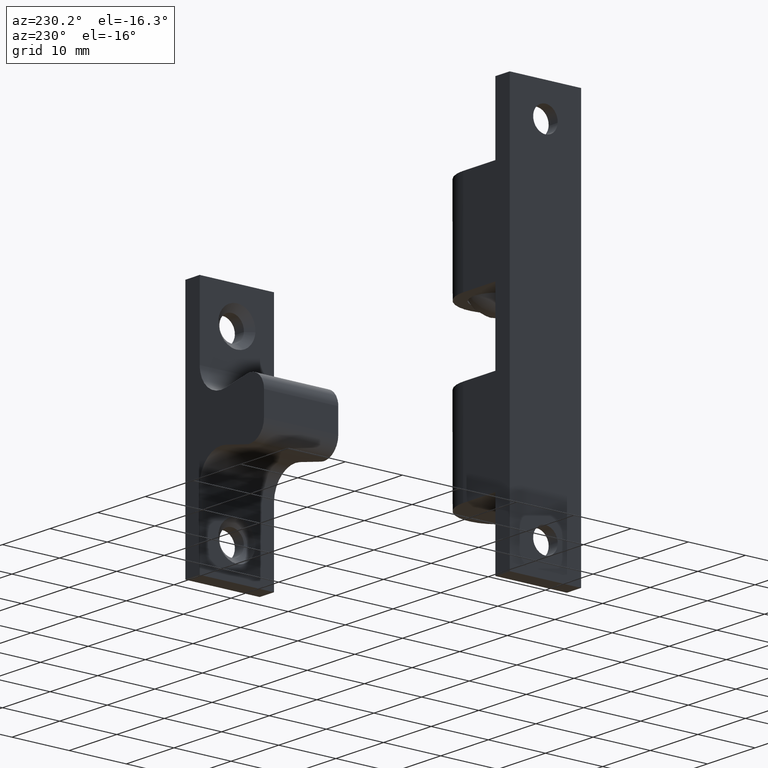
[diagram: clean part render]
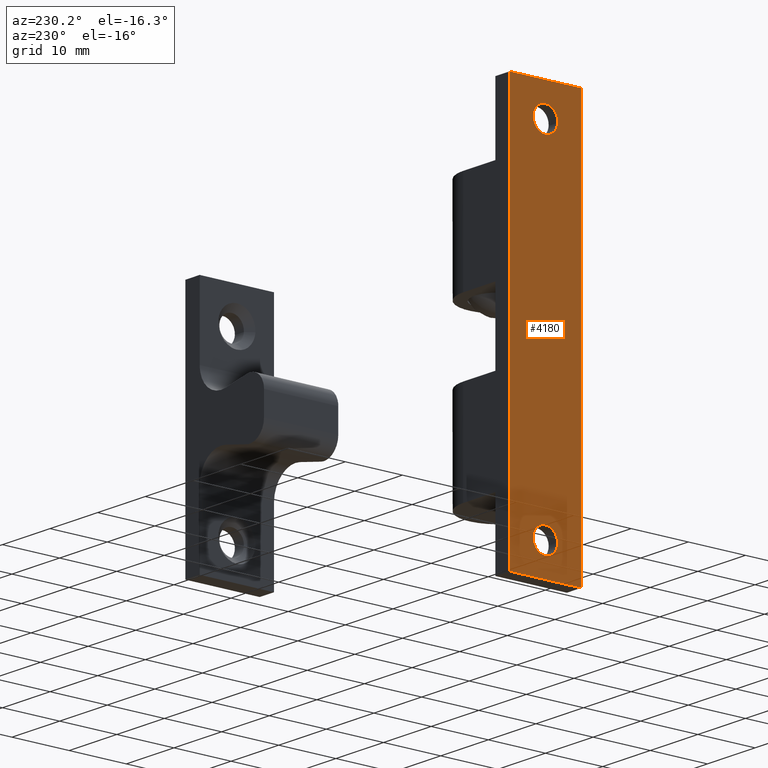
[diagram: same view with one face highlighted and labeled with its STEP entity id]
A machine part, auxiliary view. The second image highlights one B-rep face of the part: STEP entity #4180.
In plain terms, the highlighted face is a freeform B-spline surface patch.
Its self-contained STEP definition (entity closure, byte-faithful):
#2291=CARTESIAN_POINT('',(2.775558E-017,2.143372267502470,-29.668587056116699));
#2292=VERTEX_POINT('',#2291);
#2298=CARTESIAN_POINT('',(0.0,0.0,-31.649899999999999));
#2299=VERTEX_POINT('',#2298);
#2300=CARTESIAN_POINT('',(0.0,0.0,-31.649899999999999));
#2301=CARTESIAN_POINT('',(0.0,1.987439556503665,-31.649900000000006));
#2302=CARTESIAN_POINT('',(2.775558E-017,2.143372267502470,-29.668587056116703));
#2310=(BOUNDED_CURVE()B_SPLINE_CURVE(2,(#2300,#2301,#2302),.UNSPECIFIED.,.F.,.U.)B_SPLINE_CURVE_WITH_KNOTS((3,3),(0.0,0.236331300584486),.UNSPECIFIED.)CURVE()GEOMETRIC_REPRESENTATION_ITEM()RATIONAL_B_SPLINE_CURVE((1.0,0.723120658661761,0.969723356071058))REPRESENTATION_ITEM(''));
#2311=EDGE_CURVE('',#2299,#2292,#2310,.T.);
#2313=CARTESIAN_POINT('',(2.775558E-017,-2.143372267502470,-29.331212943883301));
#2314=VERTEX_POINT('',#2313);
#2315=CARTESIAN_POINT('',(2.775558E-017,-2.143372267502470,-29.331212943883301));
#2316=CARTESIAN_POINT('',(0.0,-2.149999999999999,-29.415426269630277));
#2317=CARTESIAN_POINT('',(0.0,-2.150000000000000,-29.499900000000000));
#2318=CARTESIAN_POINT('',(0.0,-2.150000000000000,-31.649900000000002));
#2319=CARTESIAN_POINT('',(0.0,0.0,-31.649899999999999));
#2327=(BOUNDED_CURVE()B_SPLINE_CURVE(2,(#2315,#2316,#2317,#2318,#2319),.UNSPECIFIED.,.F.,.U.)B_SPLINE_CURVE_WITH_KNOTS((3,2,3),(0.736331300584486,0.750000000000000,1.0),.UNSPECIFIED.)CURVE()GEOMETRIC_REPRESENTATION_ITEM()RATIONAL_B_SPLINE_CURVE((0.969723356071058,0.983986122524787,1.0,0.707106781186547,1.0))REPRESENTATION_ITEM(''));
#2328=EDGE_CURVE('',#2314,#2299,#2327,.T.);
#2365=CARTESIAN_POINT('',(0.0,0.0,-27.349900000000002));
#2366=VERTEX_POINT('',#2365);
#2367=CARTESIAN_POINT('',(0.0,0.0,-27.349900000000002));
#2368=CARTESIAN_POINT('',(0.0,-1.987439556503672,-27.349899999999991));
#2369=CARTESIAN_POINT('',(2.775558E-017,-2.143372267502471,-29.331212943883305));
#2377=(BOUNDED_CURVE()B_SPLINE_CURVE(2,(#2367,#2368,#2369),.UNSPECIFIED.,.F.,.U.)B_SPLINE_CURVE_WITH_KNOTS((3,3),(0.500000000000000,0.736331300584487),.UNSPECIFIED.)CURVE()GEOMETRIC_REPRESENTATION_ITEM()RATIONAL_B_SPLINE_CURVE((1.0,0.723120658661760,0.969723356071059))REPRESENTATION_ITEM(''));
#2378=EDGE_CURVE('',#2366,#2314,#2377,.T.);
#2380=CARTESIAN_POINT('',(2.775558E-017,2.143372267502470,-29.668587056116703));
#2381=CARTESIAN_POINT('',(0.0,2.150000000000000,-29.584373730369723));
#2382=CARTESIAN_POINT('',(0.0,2.150000000000000,-29.499900000000000));
#2383=CARTESIAN_POINT('',(0.0,2.150000000000000,-27.349899999999995));
#2384=CARTESIAN_POINT('',(0.0,0.0,-27.349900000000002));
#2392=(BOUNDED_CURVE()B_SPLINE_CURVE(2,(#2380,#2381,#2382,#2383,#2384),.UNSPECIFIED.,.F.,.U.)B_SPLINE_CURVE_WITH_KNOTS((3,2,3),(0.236331300584486,0.250000000000000,0.500000000000000),.UNSPECIFIED.)CURVE()GEOMETRIC_REPRESENTATION_ITEM()RATIONAL_B_SPLINE_CURVE((0.969723356071058,0.983986122524787,1.0,0.707106781186547,1.0))REPRESENTATION_ITEM(''));
#2393=EDGE_CURVE('',#2292,#2366,#2392,.T.);
#3374=CARTESIAN_POINT('',(2.839428E-017,2.134970481655804,29.753673604731429));
#3375=VERTEX_POINT('',#3374);
#3381=CARTESIAN_POINT('',(0.0,0.0,27.349900000000002));
#3382=VERTEX_POINT('',#3381);
#3383=CARTESIAN_POINT('',(2.839428E-017,2.134970481655804,29.753673604731432));
#3384=CARTESIAN_POINT('',(0.0,2.150000000000000,29.627231857473326));
#3385=CARTESIAN_POINT('',(0.0,2.150000000000000,29.499900000000000));
#3386=CARTESIAN_POINT('',(0.0,2.150000000000000,27.349899999999995));
#3387=CARTESIAN_POINT('',(0.0,0.0,27.349900000000002));
#3395=(BOUNDED_CURVE()B_SPLINE_CURVE(2,(#3383,#3384,#3385,#3386,#3387),.UNSPECIFIED.,.F.,.U.)B_SPLINE_CURVE_WITH_KNOTS((3,2,3),(0.229562473480909,0.250000000000000,0.500000000000000),.UNSPECIFIED.)CURVE()GEOMETRIC_REPRESENTATION_ITEM()RATIONAL_B_SPLINE_CURVE((0.956026754119804,0.976055948292953,1.0,0.707106781186547,1.0))REPRESENTATION_ITEM(''));
#3396=EDGE_CURVE('',#3375,#3382,#3395,.T.);
#3398=CARTESIAN_POINT('',(2.775558E-017,-2.145989816597822,29.368645639849760));
#3399=VERTEX_POINT('',#3398);
#3400=CARTESIAN_POINT('',(0.0,0.0,27.349900000000002));
#3401=CARTESIAN_POINT('',(0.0,-2.022518043563422,27.349900000000002));
#3402=CARTESIAN_POINT('',(2.775558E-017,-2.145989816597822,29.368645639849763));
#3410=(BOUNDED_CURVE()B_SPLINE_CURVE(2,(#3400,#3401,#3402),.UNSPECIFIED.,.F.,.U.)B_SPLINE_CURVE_WITH_KNOTS((3,3),(0.500000000000000,0.739332962217800),.UNSPECIFIED.)CURVE()GEOMETRIC_REPRESENTATION_ITEM()RATIONAL_B_SPLINE_CURVE((1.0,0.719603993311481,0.976072041621404))REPRESENTATION_ITEM(''));
#3411=EDGE_CURVE('',#3382,#3399,#3410,.T.);
#3445=CARTESIAN_POINT('',(0.0,0.0,31.649899999999999));
#3446=VERTEX_POINT('',#3445);
#3447=CARTESIAN_POINT('',(2.775558E-017,-2.145989816597822,29.368645639849760));
#3448=CARTESIAN_POINT('',(0.0,-2.150000000000000,29.434211558757319));
#3449=CARTESIAN_POINT('',(0.0,-2.150000000000000,29.499900000000000));
#3450=CARTESIAN_POINT('',(0.0,-2.150000000000000,31.649900000000002));
#3451=CARTESIAN_POINT('',(0.0,0.0,31.649899999999999));
#3459=(BOUNDED_CURVE()B_SPLINE_CURVE(2,(#3447,#3448,#3449,#3450,#3451),.UNSPECIFIED.,.F.,.U.)B_SPLINE_CURVE_WITH_KNOTS((3,2,3),(0.739332962217800,0.750000000000000,1.0),.UNSPECIFIED.)CURVE()GEOMETRIC_REPRESENTATION_ITEM()RATIONAL_B_SPLINE_CURVE((0.976072041621404,0.987502787875067,1.0,0.707106781186547,1.0))REPRESENTATION_ITEM(''));
#3460=EDGE_CURVE('',#3399,#3446,#3459,.T.);
#3462=CARTESIAN_POINT('',(0.0,0.0,31.649899999999999));
#3463=CARTESIAN_POINT('',(0.0,1.909575230400205,31.649899999999999));
#3464=CARTESIAN_POINT('',(2.839428E-017,2.134970481655804,29.753673604731432));
#3472=(BOUNDED_CURVE()B_SPLINE_CURVE(2,(#3462,#3463,#3464),.UNSPECIFIED.,.F.,.U.)B_SPLINE_CURVE_WITH_KNOTS((3,3),(0.0,0.229562473480909),.UNSPECIFIED.)CURVE()GEOMETRIC_REPRESENTATION_ITEM()RATIONAL_B_SPLINE_CURVE((1.0,0.731050832893595,0.956026754119804))REPRESENTATION_ITEM(''));
#3473=EDGE_CURVE('',#3446,#3375,#3472,.T.);
#3797=CARTESIAN_POINT('',(7.653790E-016,-6.250000000000000,-35.0));
#3798=VERTEX_POINT('',#3797);
#3804=CARTESIAN_POINT('',(-7.653790E-016,6.250000000000000,-35.0));
#3805=VERTEX_POINT('',#3804);
#3806=CARTESIAN_POINT('',(-7.653790E-016,6.250000000000000,-35.0));
#3807=CARTESIAN_POINT('',(7.653790E-016,-6.250000000000000,-35.0));
#3808=QUASI_UNIFORM_CURVE('',1,(#3806,#3807),.UNSPECIFIED.,.F.,.U.);
#3809=EDGE_CURVE('',#3805,#3798,#3808,.T.);
#3824=CARTESIAN_POINT('',(7.653790E-016,-6.250000000000000,34.999899999999997));
#3825=VERTEX_POINT('',#3824);
#3840=CARTESIAN_POINT('',(-7.653790E-016,6.250000000000000,34.999899999999997));
#3841=VERTEX_POINT('',#3840);
#3847=CARTESIAN_POINT('',(-7.653790E-016,6.250000000000000,34.999899999999997));
#3848=CARTESIAN_POINT('',(7.653790E-016,-6.250000000000000,34.999899999999997));
#3849=QUASI_UNIFORM_CURVE('',1,(#3847,#3848),.UNSPECIFIED.,.F.,.U.);
#3850=EDGE_CURVE('',#3841,#3825,#3849,.T.);
#3887=CARTESIAN_POINT('',(7.653790E-016,-6.250000000000000,34.999899999999997));
#3888=CARTESIAN_POINT('',(7.653790E-016,-6.250000000000000,-35.0));
#3889=QUASI_UNIFORM_CURVE('',1,(#3887,#3888),.UNSPECIFIED.,.F.,.U.);
#3890=EDGE_CURVE('',#3825,#3798,#3889,.T.);
#3947=CARTESIAN_POINT('',(-7.653790E-016,6.250000000000000,34.999899999999997));
#3948=CARTESIAN_POINT('',(-7.653790E-016,6.250000000000000,-35.0));
#3949=QUASI_UNIFORM_CURVE('',1,(#3947,#3948),.UNSPECIFIED.,.F.,.U.);
#3950=EDGE_CURVE('',#3841,#3805,#3949,.T.);
#4157=CARTESIAN_POINT('',(-7.653790E-016,-6.874374975772575,-38.496494869326611));
#4158=CARTESIAN_POINT('',(-7.653790E-016,6.874375311048702,-38.496494869326611));
#4159=CARTESIAN_POINT('',(-7.653790E-016,-6.874374975772575,38.496396746870239));
#4160=CARTESIAN_POINT('',(-7.653790E-016,6.874375311048702,38.496396746870239));
#4161=B_SPLINE_SURFACE_WITH_KNOTS('',1,1,((#4157,#4159),(#4158,#4160)),.UNSPECIFIED.,.F.,.F.,.U.,(2,2),(2,2),(0.0,13.748750286821281),(0.0,76.992891616196857),.UNSPECIFIED.);
#4162=ORIENTED_EDGE('',*,*,#3809,.T.);
#4163=ORIENTED_EDGE('',*,*,#3890,.F.);
#4164=ORIENTED_EDGE('',*,*,#3850,.F.);
#4165=ORIENTED_EDGE('',*,*,#3950,.T.);
#4166=EDGE_LOOP('',(#4162,#4163,#4164,#4165));
#4167=FACE_OUTER_BOUND('',#4166,.T.);
#4168=ORIENTED_EDGE('',*,*,#3411,.F.);
#4169=ORIENTED_EDGE('',*,*,#3396,.F.);
#4170=ORIENTED_EDGE('',*,*,#3473,.F.);
#4171=ORIENTED_EDGE('',*,*,#3460,.F.);
#4172=EDGE_LOOP('',(#4168,#4169,#4170,#4171));
#4173=FACE_BOUND('',#4172,.T.);
#4174=ORIENTED_EDGE('',*,*,#2378,.T.);
#4175=ORIENTED_EDGE('',*,*,#2328,.T.);
#4176=ORIENTED_EDGE('',*,*,#2311,.T.);
#4177=ORIENTED_EDGE('',*,*,#2393,.T.);
#4178=EDGE_LOOP('',(#4174,#4175,#4176,#4177));
#4179=FACE_BOUND('',#4178,.T.);
#4180=ADVANCED_FACE('',(#4167,#4173,#4179),#4161,.F.);